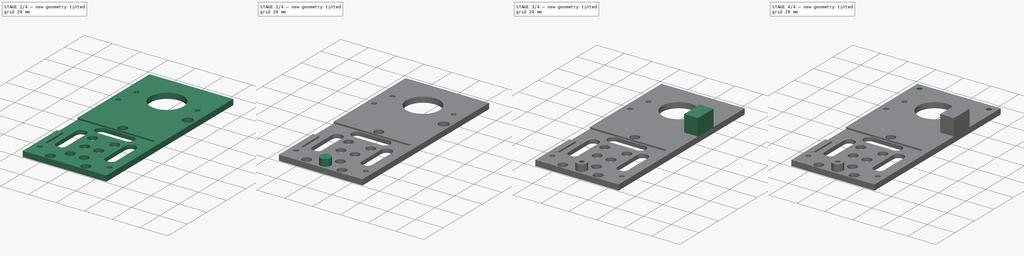
[diagram: build sequence overview — one tinted view per stage of 4, left to right]
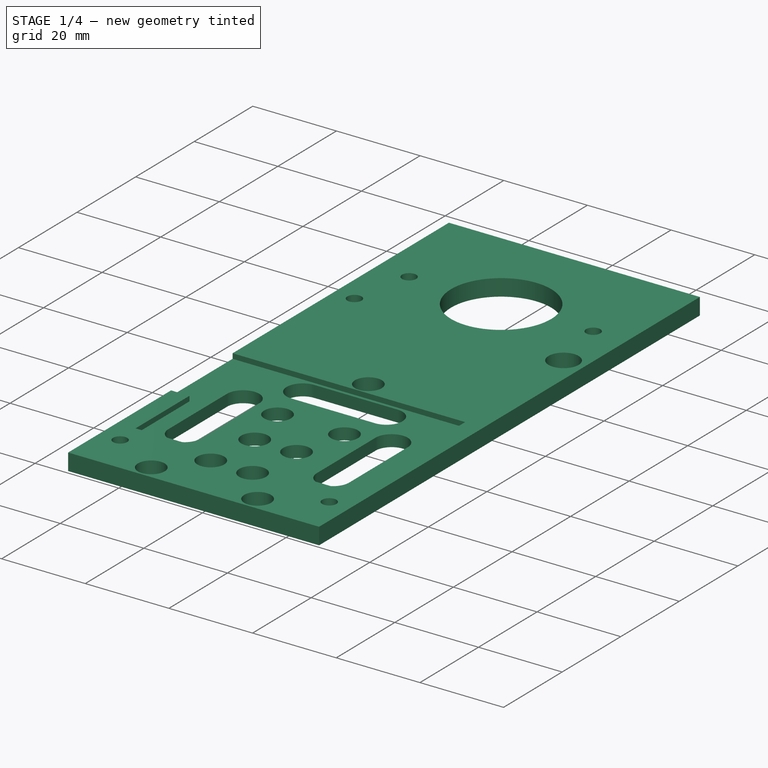
[diagram: stage 1 of 4 — iso view after this stage's code; geometry added in this stage tinted green]
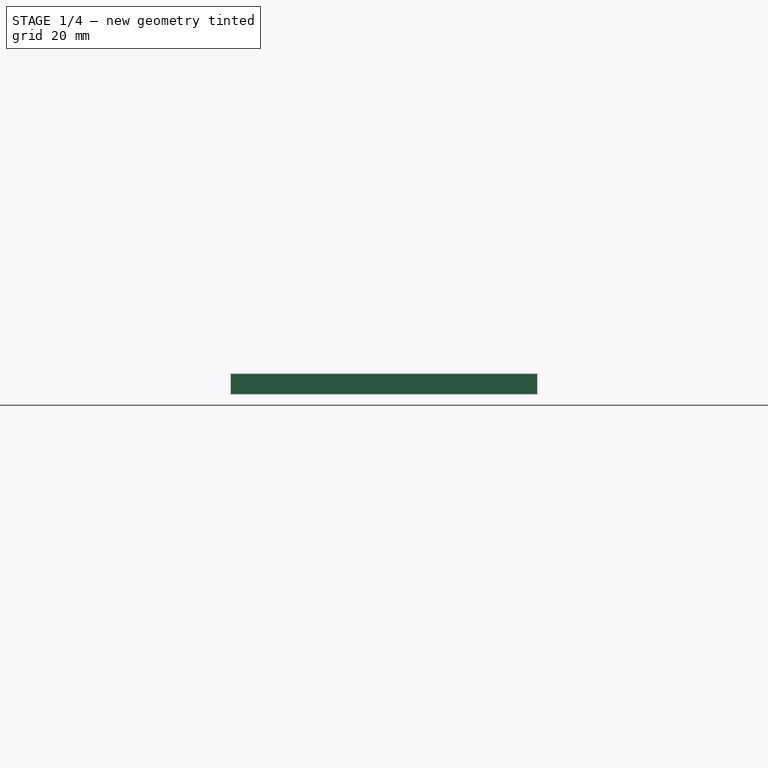
[diagram: stage 1 of 4 — front view after this stage's code; geometry added in this stage tinted green]
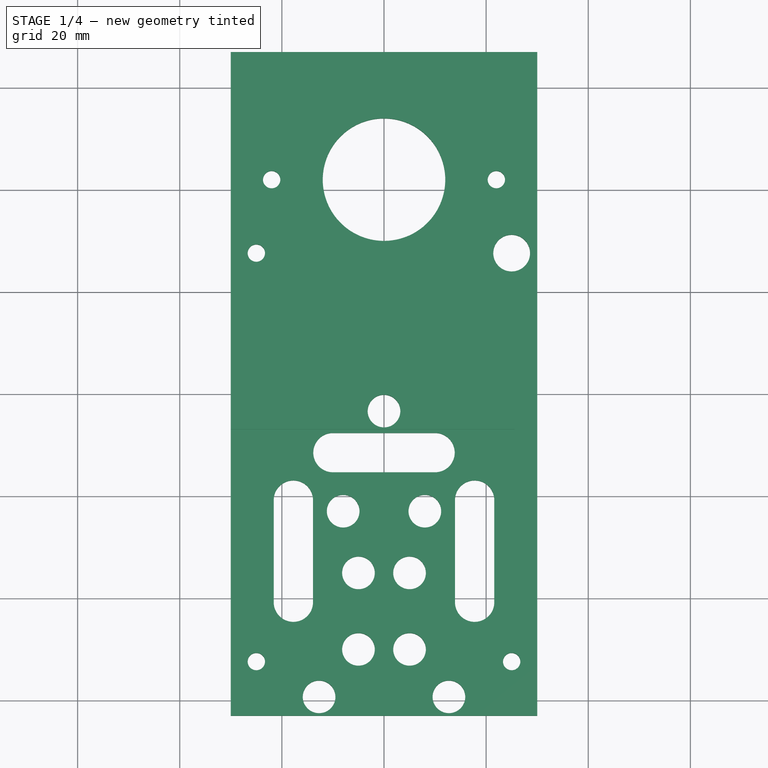
[diagram: stage 1 of 4 — top view after this stage's code; geometry added in this stage tinted green]
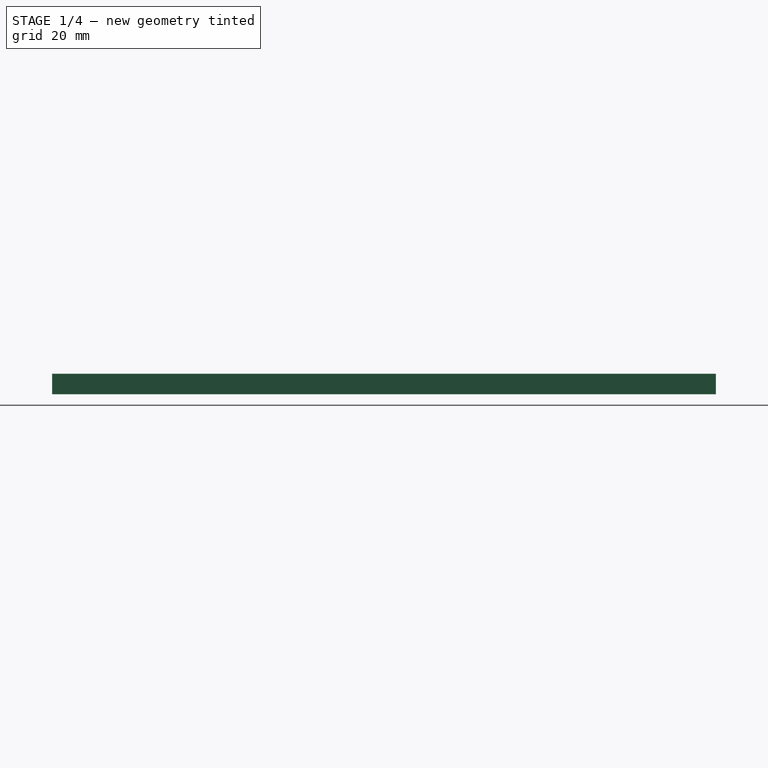
[diagram: stage 1 of 4 — right view after this stage's code; geometry added in this stage tinted green]
FCSTD DOCUMENT  (FreeCAD 0.18.4R)
Label: main_head_PnP_v1.02
License: All rights reserved
LicenseURL: http://en.wikipedia.org/wiki/All_rights_reserved
objects: Sketcher::SketchObject×10, PartDesign::Pocket×7, PartDesign::Pad×3, PartDesign::Body×1
note: 31 computed .brp shape members not serialized (recipe doc carries the construction recipe); baked Part::Feature solids carry a one-line shape summary decoded from their .brp

FEATURE [Sketcher::SketchObject] Sketch
  MapMode = 5
  Support = -> [XY_Plane]
  sketch-geometry (36):
    g0: LineSegment StartX=30 StartY=-63 StartZ=0 EndX=-30 EndY=-63 EndZ=0
    g1: LineSegment StartX=-30 StartY=-63 StartZ=0 EndX=-30 EndY=67 EndZ=0
    g2: LineSegment StartX=-30 StartY=67 StartZ=0 EndX=0 EndY=67 EndZ=0
    g3: LineSegment StartX=30 StartY=-2 StartZ=0 EndX=30 EndY=-22 EndZ=0
    g4: LineSegment StartX=30 StartY=-41 StartZ=0 EndX=30 EndY=-63 EndZ=0
    g5: Circle CenterX=-12.71 CenterY=-59.3 CenterZ=0 NormalX=0 NormalY=0 NormalZ=1 AngleXU=0 Radius=3.2
    g6: Circle CenterX=12.71 CenterY=-59.3 CenterZ=0 NormalX=0 NormalY=0 NormalZ=1 AngleXU=0 Radius=3.2
    g7: ArcOfCircle CenterX=-17.75 CenterY=-40.75 CenterZ=0 NormalX=0 NormalY=0 NormalZ=1 AngleXU=0 Radius=3.85 StartAngle=3.14159 EndAngle=6.28319
    g8: ArcOfCircle CenterX=-17.75 CenterY=-20.75 CenterZ=0 NormalX=0 NormalY=0 NormalZ=1 AngleXU=0 Radius=3.85 StartAngle=0 EndAngle=3.14159
    g9: LineSegment StartX=-13.9 StartY=-40.75 StartZ=0 EndX=-13.9 EndY=-20.75 EndZ=0
    g10: LineSegment StartX=-21.6 StartY=-40.75 StartZ=0 EndX=-21.6 EndY=-20.75 EndZ=0
    g11: ArcOfCircle CenterX=17.75 CenterY=-40.75 CenterZ=0 NormalX=0 NormalY=0 NormalZ=1 AngleXU=0 Radius=3.85 StartAngle=3.14159 EndAngle=6.28319
    g12: ArcOfCircle CenterX=17.75 CenterY=-20.75 CenterZ=0 NormalX=0 NormalY=0 NormalZ=1 AngleXU=0 Radius=3.85 StartAngle=0 EndAngle=3.14159
    g13: LineSegment StartX=21.6 StartY=-40.75 StartZ=0 EndX=21.6 EndY=-20.75 EndZ=0
    g14: LineSegment StartX=13.9 StartY=-40.75 StartZ=0 EndX=13.9 EndY=-20.75 EndZ=0
    g15: ArcOfCircle CenterX=-10 CenterY=-11.45 CenterZ=0 NormalX=0 NormalY=0 NormalZ=1 AngleXU=0 Radius=3.85 StartAngle=1.5708 EndAngle=4.71239
    g16: ArcOfCircle CenterX=10 CenterY=-11.45 CenterZ=0 NormalX=0 NormalY=0 NormalZ=1 AngleXU=0 Radius=3.85 StartAngle=4.71239 EndAngle=7.85398
    g17: LineSegment StartX=-10 StartY=-15.3 StartZ=0 EndX=10 EndY=-15.3 EndZ=0
    g18: LineSegment StartX=-10 StartY=-7.6 StartZ=0 EndX=10 EndY=-7.6 EndZ=0
    g19: Circle CenterX=0 CenterY=-3.33 CenterZ=0 NormalX=0 NormalY=0 NormalZ=1 AngleXU=0 Radius=3.2
    g20: Circle CenterX=-8 CenterY=-22.9179 CenterZ=0 NormalX=0 NormalY=0 NormalZ=1 AngleXU=0 Radius=3.2
    g21: Circle CenterX=8 CenterY=-22.9179 CenterZ=0 NormalX=0 NormalY=0 NormalZ=1 AngleXU=0 Radius=3.2
    g22: Circle CenterX=-5 CenterY=-35 CenterZ=0 NormalX=0 NormalY=0 NormalZ=1 AngleXU=0 Radius=3.2
    g23: Circle CenterX=5 CenterY=-35 CenterZ=0 NormalX=0 NormalY=0 NormalZ=1 AngleXU=0 Radius=3.2
    g24: Circle CenterX=-5 CenterY=-50 CenterZ=0 NormalX=0 NormalY=0 NormalZ=1 AngleXU=0 Radius=3.2
    g25: Circle CenterX=5 CenterY=-50 CenterZ=0 NormalX=0 NormalY=0 NormalZ=1 AngleXU=0 Radius=3.2
    g26: LineSegment StartX=30 StartY=-41 StartZ=0 EndX=30 EndY=-22 EndZ=0
    g27: LineSegment StartX=0 StartY=67 StartZ=0 EndX=30 EndY=67 EndZ=0
    g28: LineSegment StartX=30 StartY=-2 StartZ=0 EndX=30 EndY=67 EndZ=0
    g29: Circle CenterX=-25 CenterY=-52.39 CenterZ=0 NormalX=0 NormalY=0 NormalZ=1 AngleXU=0 Radius=1.7
    g30: Circle CenterX=25 CenterY=-52.39 CenterZ=0 NormalX=0 NormalY=0 NormalZ=1 AngleXU=0 Radius=1.7
    g31: Circle CenterX=-25 CenterY=27.61 CenterZ=0 NormalX=0 NormalY=0 NormalZ=1 AngleXU=0 Radius=1.7
    g32: Circle CenterX=25 CenterY=27.61 CenterZ=0 NormalX=0 NormalY=0 NormalZ=1 AngleXU=0 Radius=3.6
    g33: Circle CenterX=0 CenterY=42 CenterZ=0 NormalX=0 NormalY=0 NormalZ=1 AngleXU=0 Radius=12
    g34: Circle CenterX=-22 CenterY=42 CenterZ=0 NormalX=0 NormalY=0 NormalZ=1 AngleXU=0 Radius=1.7
    g35: Circle CenterX=22 CenterY=42 CenterZ=0 NormalX=0 NormalY=0 NormalZ=1 AngleXU=0 Radius=1.7
  constraints (87):
    c: Distance(g0,g0) = 60
    c: Coincident(g2,g1)
    c: PointOnObject(g2,g-2)
    c: Horizontal(g2)
    c: Coincident(g4,g0)
    c: Vertical(g4)
    c: Coincident(g0,g1)
    c: Symmetric(g0,g0,g-2)
    c: Symmetric(g5,g6,g-2)
    c: Distance(g6,g5) = 25.42
    c: Radius(g5) = 3.2
    c: Radius(g6) = 3.2
    c: Tangent(g7,g10) = 1.5708
    c: Tangent(g7,g9) = -1.5708
    c: Tangent(g9,g8) = -1.5708
    c: Tangent(g10,g8) = 1.5708
    c: Vertical(g9)
    c: Equal(g7,g8)
    c: Tangent(g11,g14) = 1.5708
    c: Tangent(g11,g13) = -1.5708
    c: Tangent(g13,g12) = -1.5708
    c: Tangent(g14,g12) = 1.5708
    c: Vertical(g13)
    c: Equal(g11,g12)
    c: Tangent(g15,g18) = 1.5708
    c: Tangent(g15,g17) = -1.5708
    c: Tangent(g17,g16) = -1.5708
    c: Tangent(g18,g16) = 1.5708
    c: Horizontal(g17)
    c: Distance(g8,g7) = 20
    c: Distance(g12,g11) = 20
    c: Distance(g15,g16) = 20
    c: Distance(g8,g8) = 7.7
    c: Distance(g15,g15) = 7.7
    c: Distance(g12,g12) = 7.7
    c: Symmetric(g15,g16,g-2)
    c: Symmetric(g8,g12,g-2)
    c: PointOnObject(g19,g-2)
    c: Radius(g19) = 3.2
    c: Symmetric(g20,g21,g-2)
    c: Radius(g20) = 3.2
    c: Radius(g21) = 3.2
    c: Distance(g20,g21) = 16
    c: Horizontal(g24,g25)
    c: Vertical(g22,g24)
    c: Vertical(g23,g25)
    c: Symmetric(g22,g23,g-2)
    c: Distance(g22,g23) = 10
    c: Distance(g24,g22) = 15
    c: Radius(g22) = 3.2
    c: Radius(g23) = 3.2
    c: Radius(g25) = 3.2
    c: Radius(g24) = 3.2
    c: Distance(g5,g0) = 3.7
    c: Distance(g24,g0) = 13
    c: Coincident(g26,g4)
    c: Coincident(g26,g3)
    c: Vertical(g4,g3)
    c: Coincident(g27,g2)
    c: Horizontal(g27)
    c: Coincident(g28,g3)
    c: Coincident(g28,g27)
    c: Vertical(g28)
    c: Distance(g7,g0) = 22.25
    c: Symmetric(g30,g29,g-2)
    c: Distance(g29,g30) = 50
    c: Radius(g29) = 1.7
    c: Radius(g30) = 1.7
    c: Distance(g11,g7) = 35.5
    c: DistanceY(g-1,g0) = -63
    c: DistanceY(g-1,g15) = -15.3
    c: DistanceY(g-1,g1) = 67
    c: Symmetric(g32,g31,g-2)
    c: Radius(g31) = 1.7
    c: Radius(g32) = 3.6
    c: Distance(g31,g32) = 50
    c: Distance(g31,g29) = 80
    c: PointOnObject(g33,g-2)
    c: Radius(g33) = 12
    c: Distance(g33,g2) = 25
    c: Symmetric(g35,g34,g-2)
    c: Distance(g34,g35) = 44
    c: Radius(g34) = 1.7
    c: Radius(g35) = 1.7
    c: Horizontal(g34,g33)
    c: Distance(g29,g0) = 10.61
    c: Distance(g19,g2) = 70.33
FEATURE [PartDesign::Pad] Pad
  Length = 4
  Length2 = 100
  Profile = -> Sketch
  Type = 0
FEATURE [Sketcher::SketchObject] Sketch001
  ExternalGeometry = -> [Pad]
  MapMode = 5
  Placement = pos=(0,0,4) rot=(0,0,1;0rad)
  Support = -> [Pad]
  sketch-geometry (7):
    g0: LineSegment StartX=25.61 StartY=-46.2496 StartZ=0 EndX=-25.61 EndY=-46.2496 EndZ=0
    g1: LineSegment StartX=-25.7016 StartY=-6.85 StartZ=0 EndX=25.61 EndY=-6.85 EndZ=0
    g2: LineSegment StartX=25.61 StartY=-6.85 StartZ=0 EndX=25.61 EndY=-46.2496 EndZ=0
    g3: LineSegment StartX=-25.61 StartY=-46.2496 StartZ=0 EndX=-25.61 EndY=-27.85 EndZ=0
    g4: LineSegment StartX=-25.61 StartY=-27.85 StartZ=0 EndX=-30 EndY=-27.85 EndZ=0
    g5: LineSegment StartX=-30 StartY=-27.85 StartZ=0 EndX=-30 EndY=-6.85 EndZ=0
    g6: LineSegment StartX=-30 StartY=-6.85 StartZ=0 EndX=-25.7016 EndY=-6.85 EndZ=0
  constraints (18):
    c: Coincident(g1,g2)
    c: Coincident(g2,g0)
    c: Horizontal(g1)
    c: Vertical(g2)
    c: DistanceY(g-1,g1) = -6.85
    c: Symmetric(g0,g0,g-2)
    c: DistanceX(g-2,g0) = 25.61
    c: Coincident(g3,g0)
    c: Vertical(g3)
    c: Coincident(g3,g4)
    c: PointOnObject(g4,g-9)
    c: Horizontal(g4)
    c: Coincident(g4,g5)
    c: PointOnObject(g5,g-9)
    c: Coincident(g5,g6)
    c: Coincident(g6,g1)
    c: Horizontal(g6)
    c: DistanceY(g5,g5) = 21
FEATURE [PartDesign::Pocket] Pocket
  BaseFeature = -> Pad
  Length = 1.2
  Length2 = 100
  Profile = -> Sketch001
  Type = 0
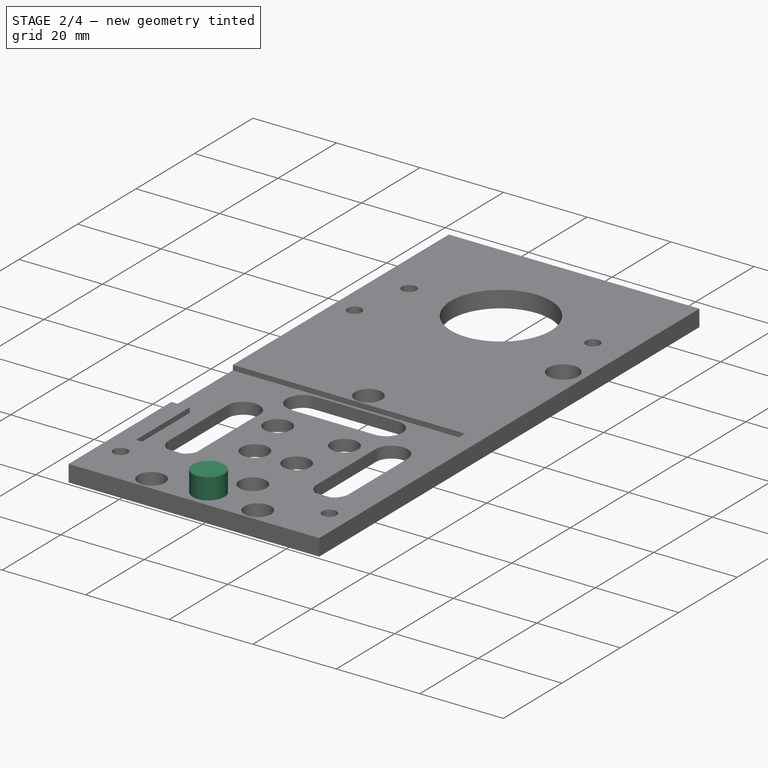
[diagram: stage 2 of 4 — iso view after this stage's code; geometry added in this stage tinted green]
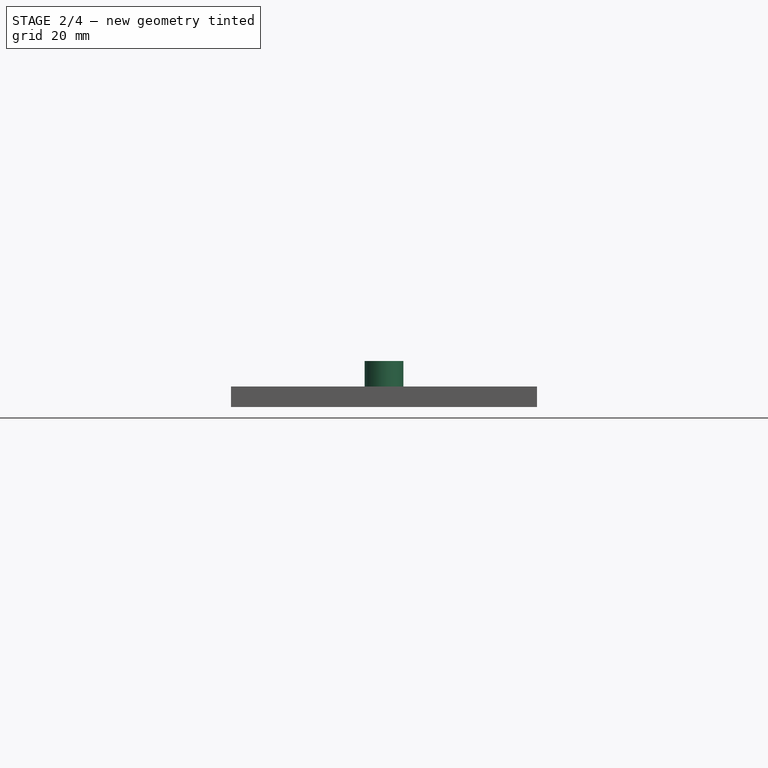
[diagram: stage 2 of 4 — front view after this stage's code; geometry added in this stage tinted green]
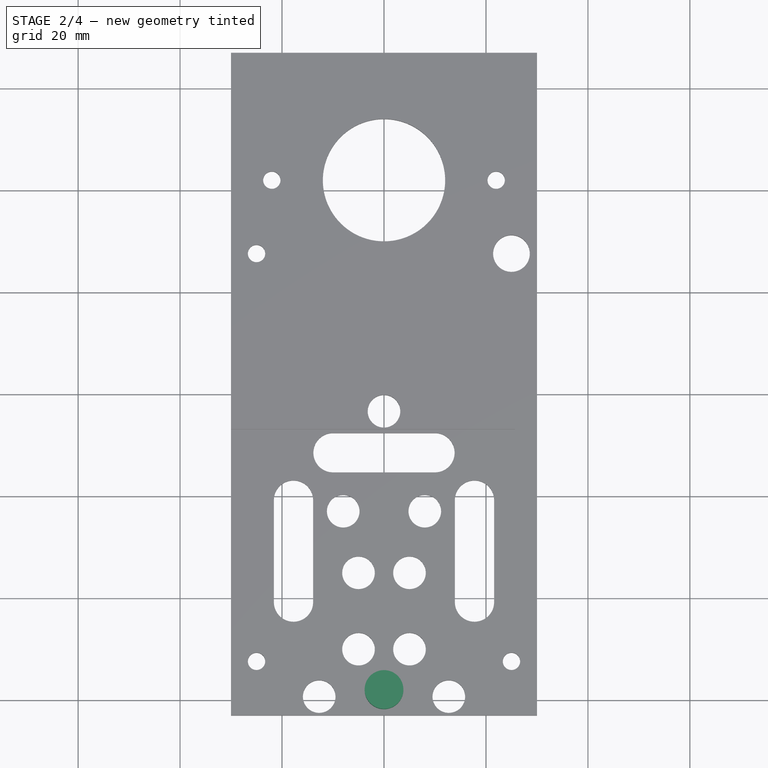
[diagram: stage 2 of 4 — top view after this stage's code; geometry added in this stage tinted green]
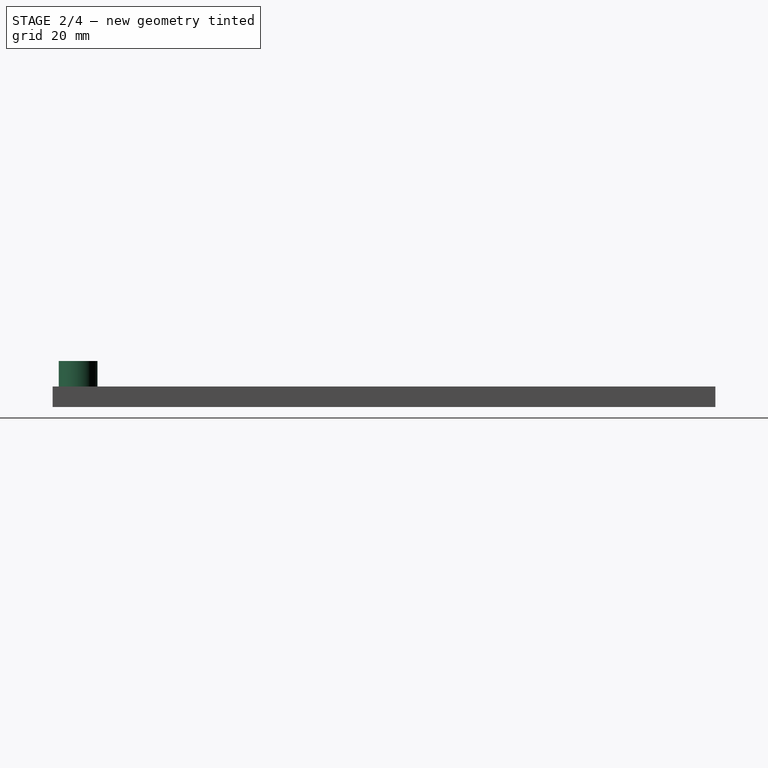
[diagram: stage 2 of 4 — right view after this stage's code; geometry added in this stage tinted green]
FEATURE [Sketcher::SketchObject] Sketch005
  MapMode = 5
  Placement = pos=(0,0,4) rot=(0,0,1;0rad)
  sketch-geometry (1):
    g0: Circle CenterX=0 CenterY=-58 CenterZ=0 NormalX=0 NormalY=0 NormalZ=1 AngleXU=0 Radius=3.8
FEATURE [PartDesign::Pad] Pad002
  BaseFeature = -> Pocket
  Length = 5
  Length2 = 100
  Profile = -> Sketch005
  Type = 0
FEATURE [Sketcher::SketchObject] Sketch007
  MapMode = 5
  Placement = pos=(25.61,0,0) rot=(0.57735,-0.57735,-0.57735;2.0944rad)
  sketch-geometry (1):
    g0: Circle CenterX=-25 CenterY=10.5993 CenterZ=0 NormalX=0 NormalY=0 NormalZ=1 AngleXU=0 Radius=2
  constraints (1):
    c: Radius(g0) = 2
FEATURE [PartDesign::Pocket] Pocket004
  BaseFeature = -> Pad002
  Length = 12
  Length2 = 100
  Profile = -> Sketch007
  Type = 0
FEATURE [Sketcher::SketchObject] Sketch011
  MapMode = 5
  Placement = pos=(30,0,0) rot=(0.57735,0.57735,0.57735;2.0944rad)
  sketch-geometry (1):
    g0: Circle CenterX=-25 CenterY=-5.49744 CenterZ=0 NormalX=0 NormalY=0 NormalZ=1 AngleXU=0 Radius=2
  constraints (1):
    c: Radius(g0) = 2
FEATURE [PartDesign::Pocket] Pocket006
  BaseFeature = -> Pocket004
  Length = 10
  Length2 = 100
  Profile = -> Sketch011
  Type = 0
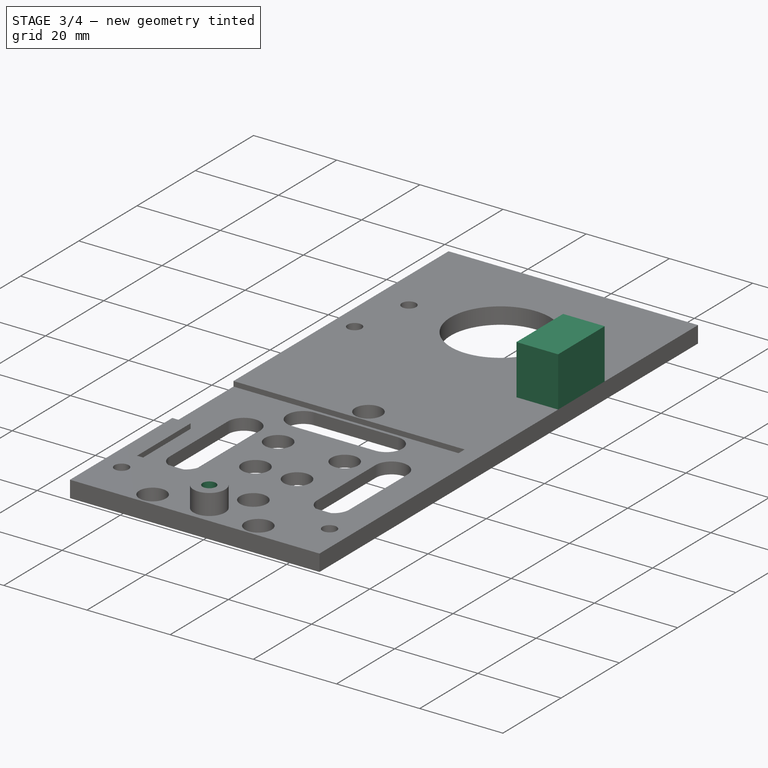
[diagram: stage 3 of 4 — iso view after this stage's code; geometry added in this stage tinted green]
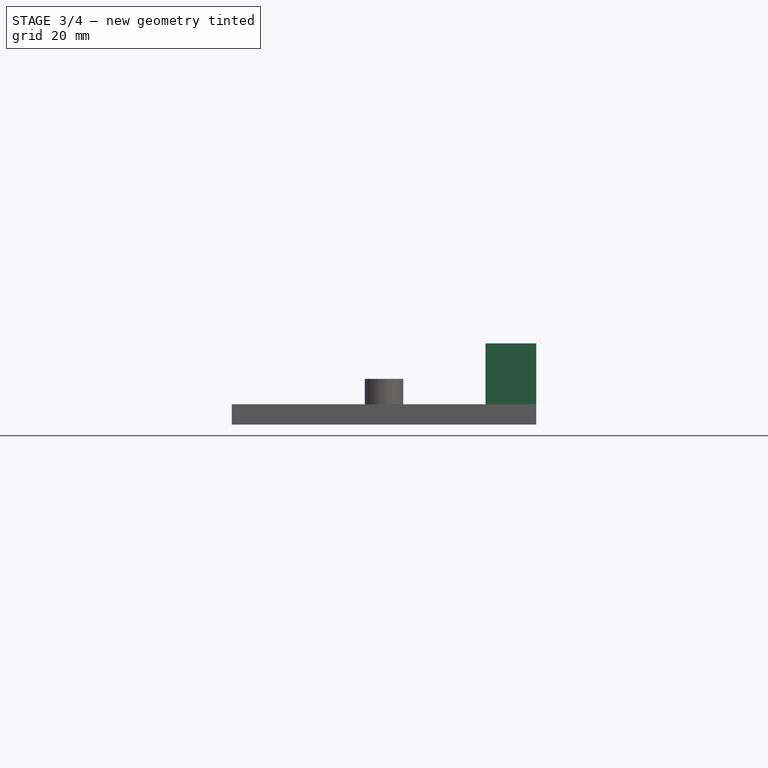
[diagram: stage 3 of 4 — front view after this stage's code; geometry added in this stage tinted green]
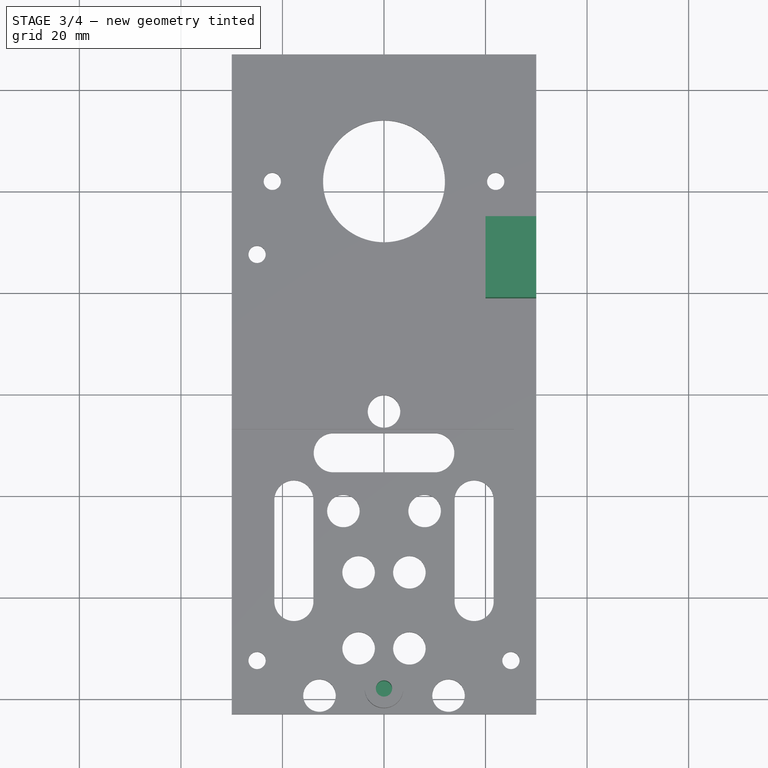
[diagram: stage 3 of 4 — top view after this stage's code; geometry added in this stage tinted green]
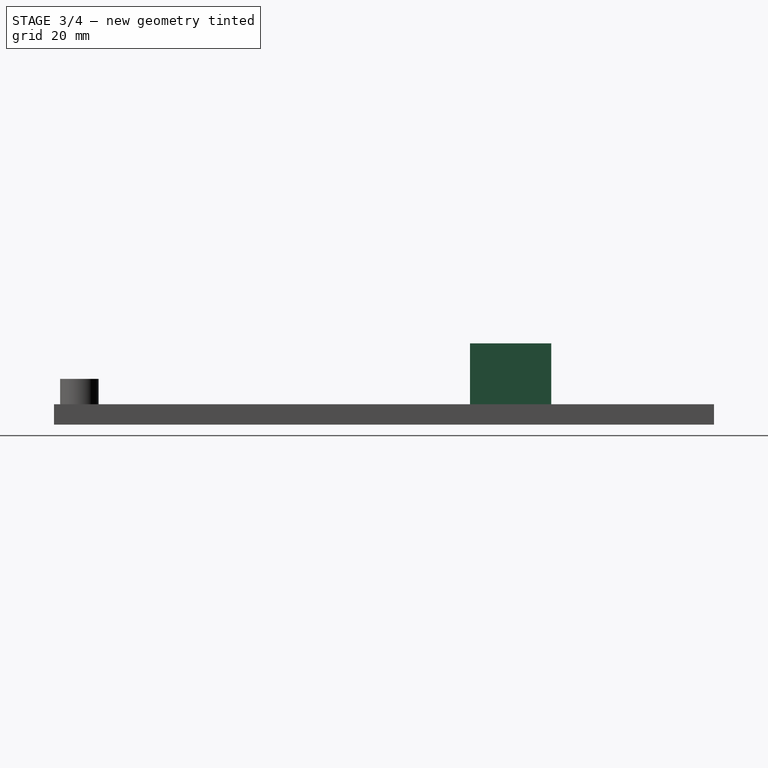
[diagram: stage 3 of 4 — right view after this stage's code; geometry added in this stage tinted green]
FEATURE [Sketcher::SketchObject] Sketch012
  ExternalGeometry = -> [Pocket006]
  MapMode = 5
  Placement = pos=(0,0,9) rot=(0,0,1;0rad)
  Support = -> [Pocket006]
  sketch-geometry (1):
    g0: Circle CenterX=0 CenterY=-58 CenterZ=0 NormalX=0 NormalY=0 NormalZ=1 AngleXU=0 Radius=1.6
  constraints (2):
    c: Coincident(g0,g-3)
    c: Radius(g0) = 1.6
FEATURE [PartDesign::Pocket] Pocket007
  BaseFeature = -> Pocket006
  Length = 8
  Length2 = 100
  Profile = -> Sketch012
  Type = 0
FEATURE [Sketcher::SketchObject] Sketch013
  ExternalGeometry = -> [Pocket007]
  MapMode = 5
  Placement = pos=(0,0,4) rot=(0,0,1;0rad)
  Support = -> [Pocket007]
  sketch-geometry (4):
    g0: LineSegment StartX=30 StartY=18.9402 StartZ=0 EndX=20 EndY=18.9402 EndZ=0
    g1: LineSegment StartX=20 StartY=18.9402 StartZ=0 EndX=20 EndY=34.9402 EndZ=0
    g2: LineSegment StartX=20 StartY=34.9402 StartZ=0 EndX=30 EndY=34.9402 EndZ=0
    g3: LineSegment StartX=30 StartY=34.9402 StartZ=0 EndX=30 EndY=18.9402 EndZ=0
  constraints (11):
    c: Coincident(g0,g1)
    c: Coincident(g1,g2)
    c: Coincident(g2,g3)
    c: Coincident(g3,g0)
    c: Horizontal(g0)
    c: Horizontal(g2)
    c: Vertical(g1)
    c: Vertical(g3)
    c: PointOnObject(g0,g-4)
    c: DistanceX(g2,g2) = 10
    c: DistanceY(g1,g1) = 16
FEATURE [PartDesign::Pad] Pad003
  BaseFeature = -> Pocket007
  Length = 12
  Length2 = 100
  Profile = -> Sketch013
  Type = 0
FEATURE [Sketcher::SketchObject] Sketch014
  ExternalGeometry = -> [Pad003]
  MapMode = 5
  Placement = pos=(0,0,4) rot=(1,0,0;3.14159rad)
  Support = -> [Pad003]
  sketch-geometry (1):
    g0: Circle CenterX=25 CenterY=-27.61 CenterZ=0 NormalX=0 NormalY=0 NormalZ=1 AngleXU=0 Radius=3.6
  constraints (2):
    c: Coincident(g0,g-3)
    c: Radius(g0) = 3.6
FEATURE [PartDesign::Pocket] Pocket008
  BaseFeature = -> Pad003
  Length = 10
  Length2 = 100
  Profile = -> Sketch014
  Type = 0
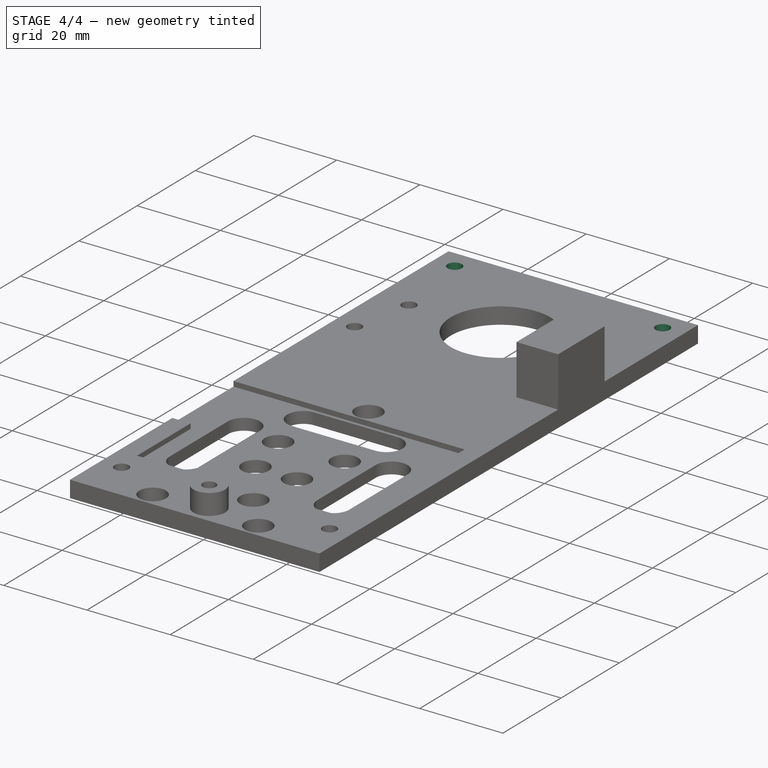
[diagram: stage 4 of 4 — iso view after this stage's code; geometry added in this stage tinted green]
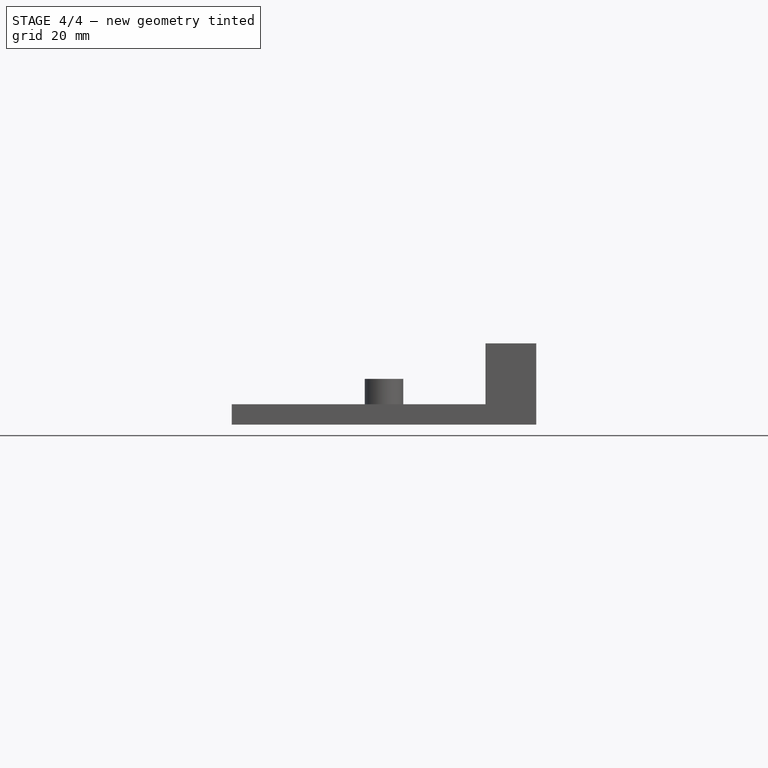
[diagram: stage 4 of 4 — front view after this stage's code; geometry added in this stage tinted green]
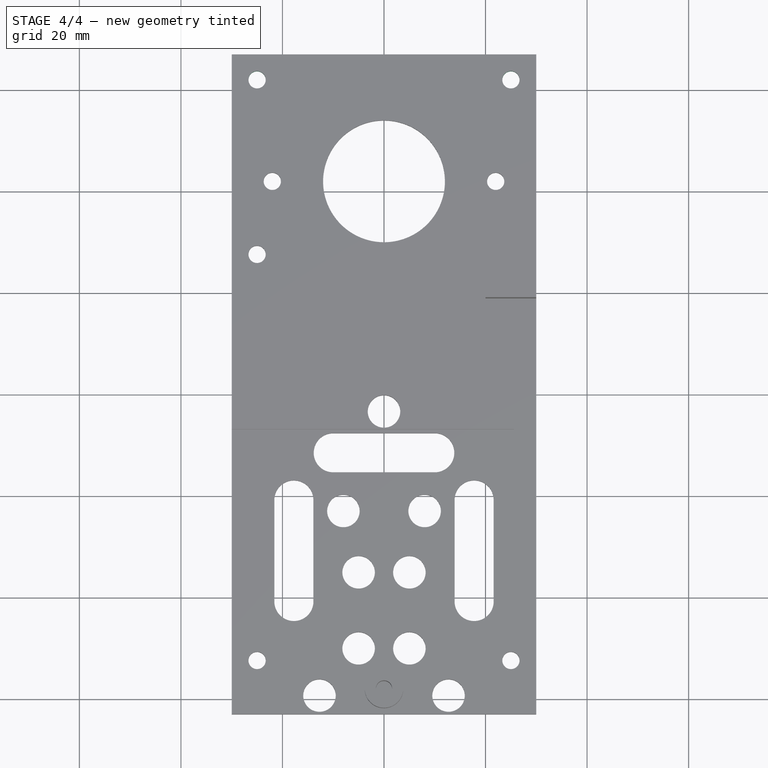
[diagram: stage 4 of 4 — top view after this stage's code; geometry added in this stage tinted green]
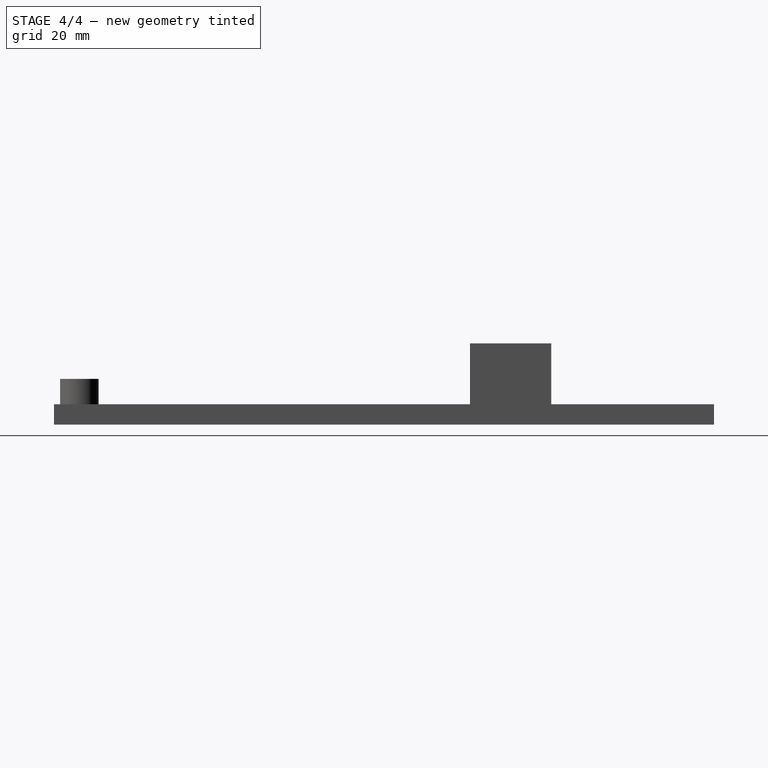
[diagram: stage 4 of 4 — right view after this stage's code; geometry added in this stage tinted green]
FEATURE [Sketcher::SketchObject] Sketch015
  ExternalGeometry = -> [Pocket008]
  MapMode = 5
  Placement = pos=(0,34.9402,0) rot=(0,0.707107,0.707107;3.14159rad)
  Support = -> [Pocket008]
  sketch-geometry (1):
    g0: Circle CenterX=-25 CenterY=9.98585 CenterZ=0 NormalX=0 NormalY=0 NormalZ=1 AngleXU=0 Radius=2
  constraints (2):
    c: Distance(g0,g-3) = 5
    c: Radius(g0) = 2
FEATURE [PartDesign::Pocket] Pocket009
  BaseFeature = -> Pocket008
  Length = 10
  Length2 = 100
  Profile = -> Sketch015
  Type = 0
FEATURE [Sketcher::SketchObject] Sketch016
  ExternalGeometry = -> [Pocket009]
  MapMode = 5
  Placement = pos=(0,0,4) rot=(0,0,1;0rad)
  Support = -> [Pocket009]
  sketch-geometry (2):
    g0: Circle CenterX=-25 CenterY=62 CenterZ=0 NormalX=0 NormalY=0 NormalZ=1 AngleXU=0 Radius=1.7
    g1: Circle CenterX=25 CenterY=62 CenterZ=0 NormalX=0 NormalY=0 NormalZ=1 AngleXU=0 Radius=1.7
  constraints (6):
    c: Distance(g1,g-5) = 5
    c: Distance(g1,g-4) = 5
    c: Distance(g0,g-3) = 5
    c: Distance(g0,g-6) = 5
    c: Radius(g0) = 1.7
    c: Radius(g1) = 1.7
FEATURE [PartDesign::Pocket] Pocket010
  BaseFeature = -> Pocket009
  Length = 5
  Length2 = 100
  Profile = -> Sketch016
  Type = 0
FEATURE [PartDesign::Body] Body
  Group = -> [Sketch,Pad,Sketch001,Pocket,Sketch005,Pad002,Sketch007,Pocket004,Sketch011,Pocket006,Sketch012,Pocket007,Sketch013,Pad003,Sketch014,Pocket008,Sketch015,Pocket009,Sketch016,Pocket010]
  Origin = -> Origin
  Tip = -> Pocket010
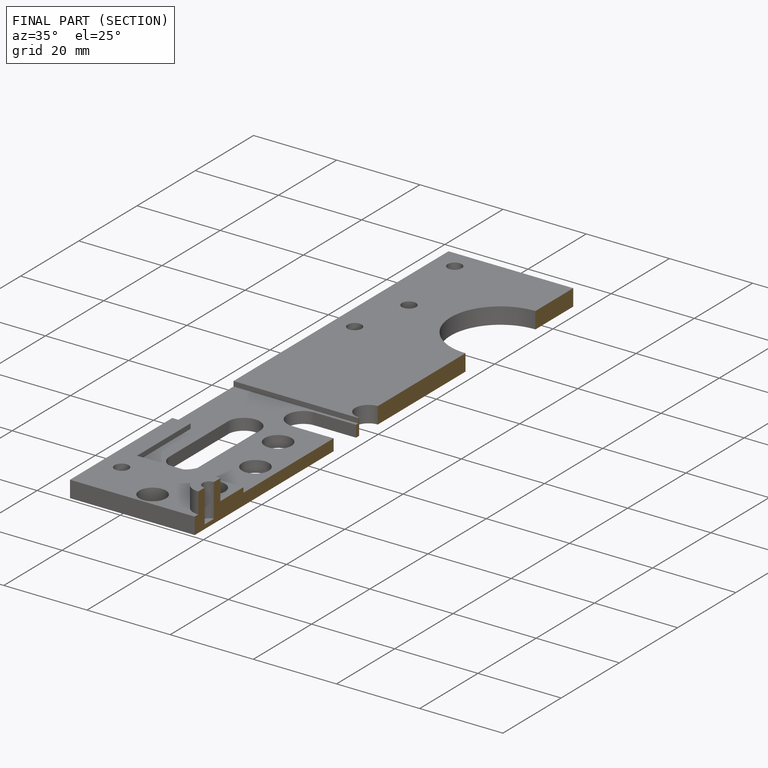
[diagram: finished part — half-section view (interior)]
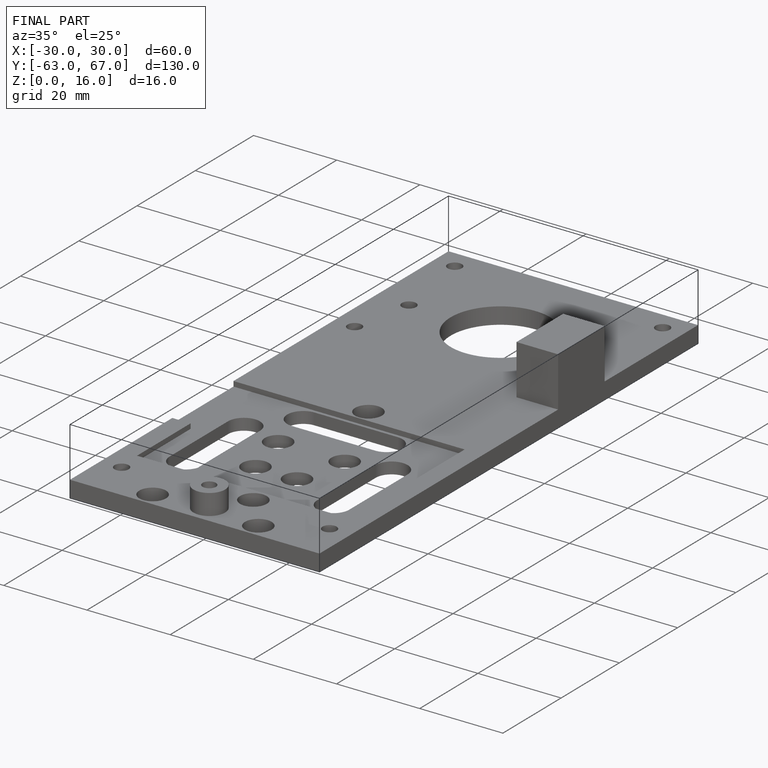
[diagram: finished part — iso view with bounding-box wireframe]
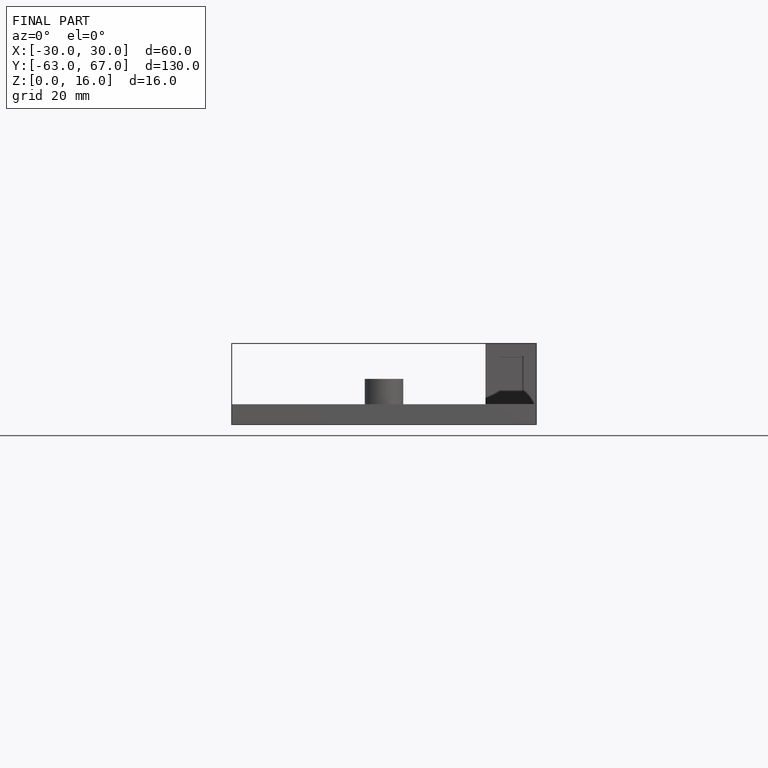
[diagram: finished part — front view with bounding-box wireframe]
